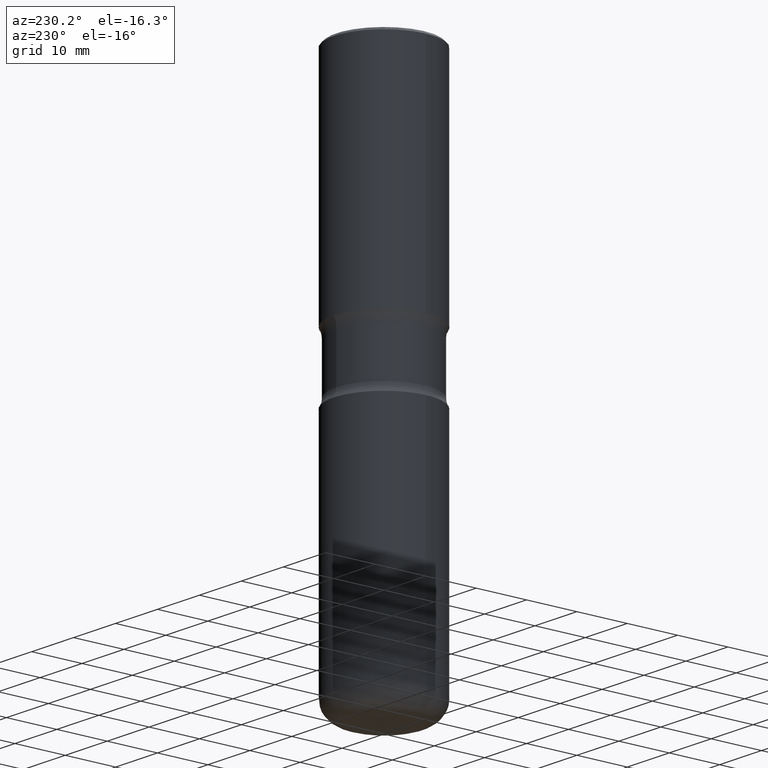
[diagram: clean part render]
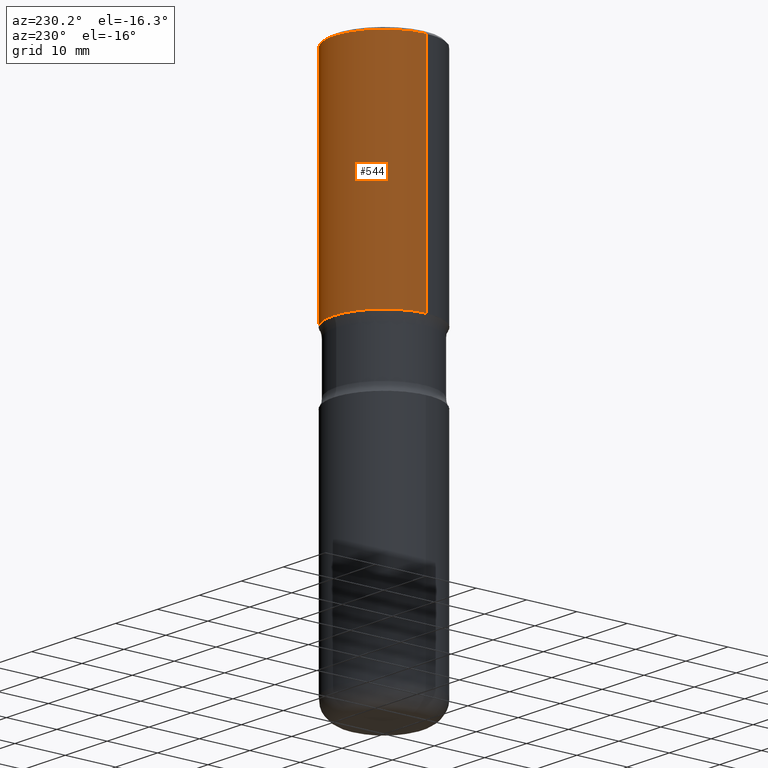
[diagram: same view with one face highlighted and labeled with its STEP entity id]
A machine part, auxiliary view. The second image highlights one B-rep face of the part: STEP entity #544.
In plain terms, the highlighted cylindrical surface (partial cylindrical patch) has radius 10 mm, axis along (-0, 0, 1).
Its self-contained STEP definition (entity closure, byte-faithful):
#3 = ORIENTED_EDGE ( 'NONE', *, *, #72, .F. ) ;
#18 = EDGE_LOOP ( 'NONE', ( #499, #364, #42, #3 ) ) ;
#22 = EDGE_CURVE ( 'NONE', #534, #146, #348, .T. ) ;
#42 = ORIENTED_EDGE ( 'NONE', *, *, #22, .F. ) ;
#72 = EDGE_CURVE ( 'NONE', #468, #534, #460, .T. ) ;
#75 = CARTESIAN_POINT ( 'NONE',  ( 0.3937000000000003830, -2.749192406205085978E-15, 1.919750796630861853E-29 ) ) ;
#94 = DIRECTION ( 'NONE',  ( -2.445468806185136597E-29, 3.491481338843145583E-15, 1.000000000000000000 ) ) ;
#146 = VERTEX_POINT ( 'NONE', #337 ) ;
#165 = EDGE_CURVE ( 'NONE', #529, #146, #380, .T. ) ;
#198 = CARTESIAN_POINT ( 'NONE',  ( -0.3937000000000005495, -3.304368067151132125E-16, -1.771700000000000719 ) ) ;
#204 = AXIS2_PLACEMENT_3D ( 'NONE', #282, #545, #320 ) ;
#205 = CIRCLE ( 'NONE', #512, 0.3937000000000004940 ) ;
#225 = DIRECTION ( 'NONE',  ( 1.000000000000000000, -6.982962677686269866E-15, 0.000000000000000000 ) ) ;
#237 = DIRECTION ( 'NONE',  ( -2.445468806185136597E-29, 3.491481338843145583E-15, 1.000000000000000000 ) ) ;
#245 = DIRECTION ( 'NONE',  ( -2.445468806185136877E-29, 3.491481338843145188E-15, 1.000000000000000000 ) ) ;
#278 = VECTOR ( 'NONE', #245, 39.37007874015748143 ) ;
#282 = CARTESIAN_POINT ( 'NONE',  ( 4.890937612370306439E-31, -6.982962677686338448E-17, -0.02000000000000013572 ) ) ;
#289 = CYLINDRICAL_SURFACE ( 'NONE', #303, 0.3937000000000003830 ) ;
#303 = AXIS2_PLACEMENT_3D ( 'NONE', #452, #237, #407 ) ;
#318 = EDGE_CURVE ( 'NONE', #468, #529, #205, .T. ) ;
#320 = DIRECTION ( 'NONE',  ( 1.000000000000000000, -6.982962677686266711E-15, 0.000000000000000000 ) ) ;
#330 = CARTESIAN_POINT ( 'NONE',  ( 0.3937000000000002164, -2.770807688499516917E-15, -0.02000000000000013572 ) ) ;
#337 = CARTESIAN_POINT ( 'NONE',  ( -0.3937000000000002164, 2.679362779428221496E-15, -0.02000000000000013572 ) ) ;
#348 = CIRCLE ( 'NONE', #204, 0.3937000000000002164 ) ;
#363 = FACE_OUTER_BOUND ( 'NONE', #18, .T. ) ;
#364 = ORIENTED_EDGE ( 'NONE', *, *, #165, .T. ) ;
#380 = LINE ( 'NONE', #390, #465 ) ;
#390 = CARTESIAN_POINT ( 'NONE',  ( -0.3937000000000003830, 2.797406750687517153E-15, -1.936584745033358137E-29 ) ) ;
#407 = DIRECTION ( 'NONE',  ( 1.000000000000000000, -6.982962677686266711E-15, 4.876176775795935793E-29 ) ) ;
#452 = CARTESIAN_POINT ( 'NONE',  ( 0.000000000000000000, 0.000000000000000000, 0.000000000000000000 ) ) ;
#460 = LINE ( 'NONE', #75, #278 ) ;
#465 = VECTOR ( 'NONE', #549, 39.37007874015748143 ) ;
#468 = VERTEX_POINT ( 'NONE', #496 ) ;
#479 = CARTESIAN_POINT ( 'NONE',  ( 4.332637083918208108E-29, -6.185857488028402659E-15, -1.771700000000000719 ) ) ;
#496 = CARTESIAN_POINT ( 'NONE',  ( 0.3937000000000004940, -8.935049894233490609E-15, -1.771700000000000719 ) ) ;
#499 = ORIENTED_EDGE ( 'NONE', *, *, #318, .T. ) ;
#512 = AXIS2_PLACEMENT_3D ( 'NONE', #479, #94, #225 ) ;
#529 = VERTEX_POINT ( 'NONE', #198 ) ;
#534 = VERTEX_POINT ( 'NONE', #330 ) ;
#544 = ADVANCED_FACE ( 'NONE', ( #363 ), #289, .T. ) ;
#545 = DIRECTION ( 'NONE',  ( -2.445468806185136597E-29, 3.491481338843145583E-15, 1.000000000000000000 ) ) ;
#549 = DIRECTION ( 'NONE',  ( -2.445468806185136877E-29, 3.491481338843145188E-15, 1.000000000000000000 ) ) ;